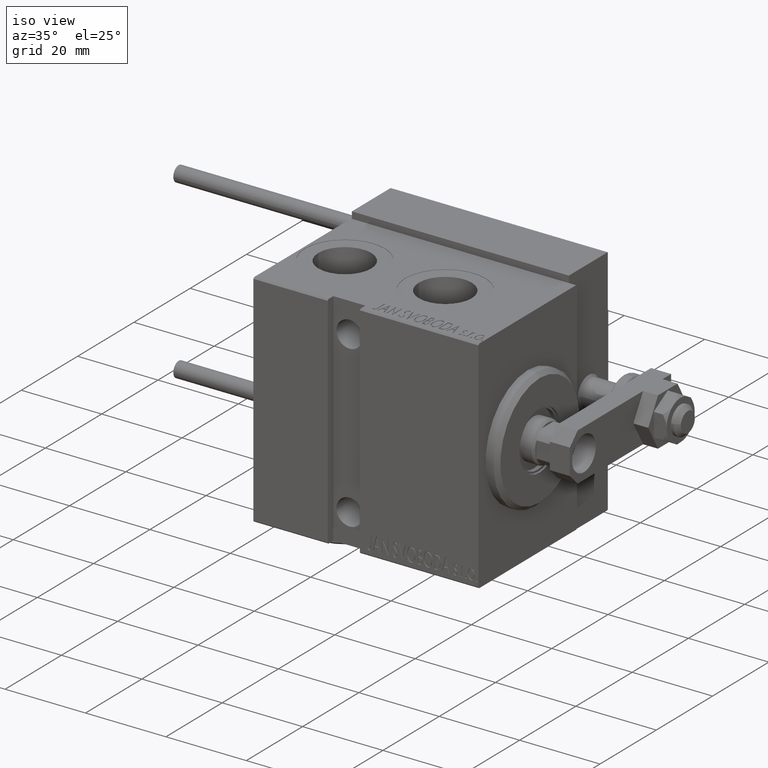
[diagram: clean part render]
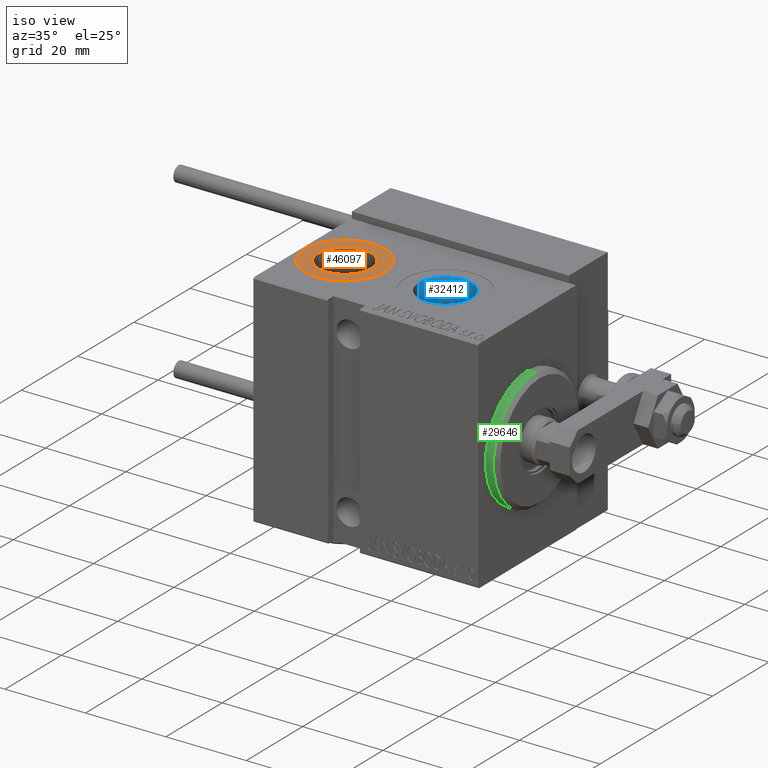
[diagram: same view with three faces highlighted in distinct colors, each labeled with its STEP entity id]
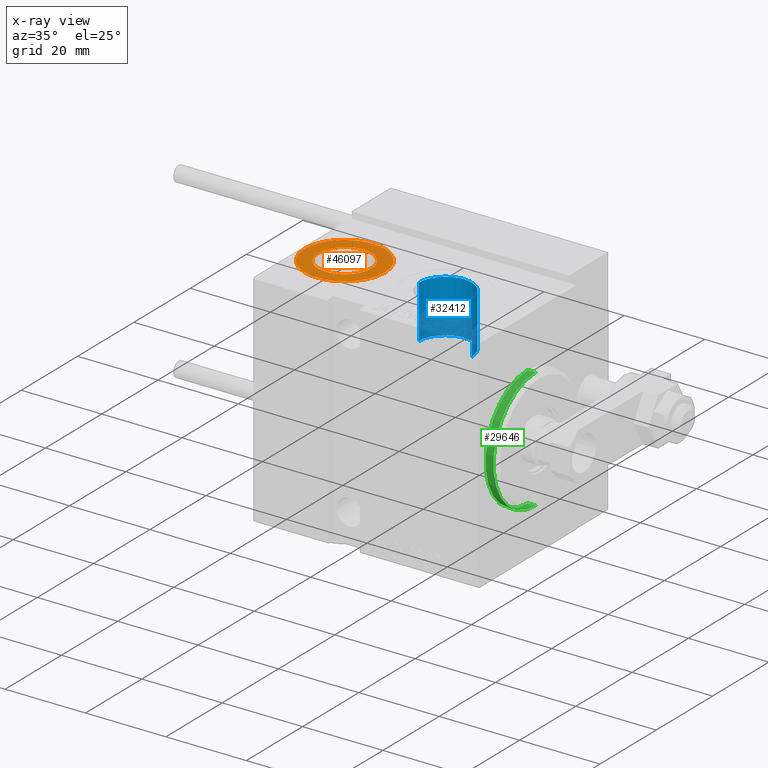
[diagram: x-ray of the same camera — body ghosted, the three highlighted faces saturated]
A machine part, iso view with three faces highlighted in distinct colors.
The next image is the same camera in x-ray (body ghosted, the three faces saturated) — at least one of them is partly hidden behind the body in this view.
Their STEP definitions:

[orange] entity #46097 — the highlighted planar face has unit normal (0, 0, 1).
#1372 = CARTESIAN_POINT ( 'NONE',  ( 45.50000000000000000, -5.451988067355679101E-15, 27.39999999999999858 ) ) ;
#1805 = CARTESIAN_POINT ( 'NONE',  ( 55.50000000000000000, -5.451988067355679101E-15, 27.39999999999999858 ) ) ;
#1838 = CIRCLE ( 'NONE', #29105, 6.580000000000002736 ) ;
#2170 = DIRECTION ( 'NONE',  ( 1.000000000000000000, 0.000000000000000000, 0.000000000000000000 ) ) ;
#3821 = DIRECTION ( 'NONE',  ( 1.000000000000000000, 0.000000000000000000, 0.000000000000000000 ) ) ;
#4041 = EDGE_CURVE ( 'NONE', #42548, #43212, #6548, .T. ) ;
#6548 = CIRCLE ( 'NONE', #12354, 10.00000000000000178 ) ;
#8633 = CARTESIAN_POINT ( 'NONE',  ( 52.07999999999999829, 0.000000000000000000, 27.39999999999999858 ) ) ;
#8671 = CARTESIAN_POINT ( 'NONE',  ( 45.50000000000000000, -5.451988067355679101E-15, 27.39999999999999858 ) ) ;
#9752 = CARTESIAN_POINT ( 'NONE',  ( 35.50000000000000000, -4.227341268208326831E-15, 27.39999999999999858 ) ) ;
#10961 = CARTESIAN_POINT ( 'NONE',  ( 45.50000000000000000, 0.000000000000000000, 27.39999999999999858 ) ) ;
#12291 = CIRCLE ( 'NONE', #27129, 6.580000000000002736 ) ;
#12354 = AXIS2_PLACEMENT_3D ( 'NONE', #1372, #21038, #32448 ) ;
#13621 = EDGE_LOOP ( 'NONE', ( #36493, #34927 ) ) ;
#16667 = DIRECTION ( 'NONE',  ( 0.000000000000000000, 0.000000000000000000, 1.000000000000000000 ) ) ;
#16915 = FACE_BOUND ( 'NONE', #13621, .T. ) ;
#17669 = DIRECTION ( 'NONE',  ( 1.000000000000000000, 0.000000000000000000, -0.000000000000000000 ) ) ;
#17727 = CARTESIAN_POINT ( 'NONE',  ( 45.50000000000000000, 0.000000000000000000, 27.39999999999999858 ) ) ;
#20474 = CARTESIAN_POINT ( 'NONE',  ( 38.91999999999999460, 8.058175938389585489E-16, 27.39999999999999858 ) ) ;
#21038 = DIRECTION ( 'NONE',  ( 0.000000000000000000, 0.000000000000000000, 1.000000000000000000 ) ) ;
#22958 = CARTESIAN_POINT ( 'NONE',  ( 45.50000000000000000, -5.451988067355679101E-15, 27.39999999999999858 ) ) ;
#25439 = FACE_OUTER_BOUND ( 'NONE', #40872, .T. ) ;
#26430 = EDGE_CURVE ( 'NONE', #37328, #41837, #1838, .T. ) ;
#26726 = CIRCLE ( 'NONE', #36654, 10.00000000000000178 ) ;
#27129 = AXIS2_PLACEMENT_3D ( 'NONE', #17727, #33515, #49780 ) ;
#27688 = ORIENTED_EDGE ( 'NONE', *, *, #29084, .T. ) ;
#27889 = DIRECTION ( 'NONE',  ( 0.000000000000000000, 0.000000000000000000, 1.000000000000000000 ) ) ;
#29084 = EDGE_CURVE ( 'NONE', #43212, #42548, #26726, .T. ) ;
#29105 = AXIS2_PLACEMENT_3D ( 'NONE', #10961, #49748, #2170 ) ;
#32448 = DIRECTION ( 'NONE',  ( 1.000000000000000000, 0.000000000000000000, 0.000000000000000000 ) ) ;
#33515 = DIRECTION ( 'NONE',  ( 0.000000000000000000, 0.000000000000000000, 1.000000000000000000 ) ) ;
#34927 = ORIENTED_EDGE ( 'NONE', *, *, #26430, .F. ) ;
#36493 = ORIENTED_EDGE ( 'NONE', *, *, #47142, .F. ) ;
#36654 = AXIS2_PLACEMENT_3D ( 'NONE', #22958, #27889, #3821 ) ;
#37140 = AXIS2_PLACEMENT_3D ( 'NONE', #8671, #16667, #17669 ) ;
#37328 = VERTEX_POINT ( 'NONE', #20474 ) ;
#40872 = EDGE_LOOP ( 'NONE', ( #27688, #42873 ) ) ;
#41837 = VERTEX_POINT ( 'NONE', #8633 ) ;
#42548 = VERTEX_POINT ( 'NONE', #9752 ) ;
#42873 = ORIENTED_EDGE ( 'NONE', *, *, #4041, .T. ) ;
#43212 = VERTEX_POINT ( 'NONE', #1805 ) ;
#44083 = PLANE ( 'NONE',  #37140 ) ;
#46097 = ADVANCED_FACE ( 'NONE', ( #16915, #25439 ), #44083, .T. ) ;
#47142 = EDGE_CURVE ( 'NONE', #41837, #37328, #12291, .T. ) ;
#49748 = DIRECTION ( 'NONE',  ( 0.000000000000000000, 0.000000000000000000, 1.000000000000000000 ) ) ;
#49780 = DIRECTION ( 'NONE',  ( 1.000000000000000000, 0.000000000000000000, 0.000000000000000000 ) ) ;

[blue] entity #32412 — the highlighted cylindrical surface (edge-blend (fillet) strip) has radius 6.58 mm, axis along (0, 0, 1).
#497 = CARTESIAN_POINT ( 'NONE',  ( 27.07999999999999829, 0.000000000000000000, 27.39999999999999858 ) ) ;
#1167 = LINE ( 'NONE', #48752, #2971 ) ;
#1913 = ORIENTED_EDGE ( 'NONE', *, *, #35095, .T. ) ;
#2971 = VECTOR ( 'NONE', #13312, 1000.000000000000000 ) ;
#2980 = DIRECTION ( 'NONE',  ( 0.000000000000000000, 0.000000000000000000, 1.000000000000000000 ) ) ;
#7878 = AXIS2_PLACEMENT_3D ( 'NONE', #17538, #49083, #13652 ) ;
#8068 = CARTESIAN_POINT ( 'NONE',  ( 13.92000000000000171, 8.058175938389579572E-16, 27.39999999999999858 ) ) ;
#13312 = DIRECTION ( 'NONE',  ( -0.000000000000000000, -0.000000000000000000, 1.000000000000000000 ) ) ;
#13612 = AXIS2_PLACEMENT_3D ( 'NONE', #30406, #2980, #22379 ) ;
#13652 = DIRECTION ( 'NONE',  ( 1.000000000000000000, 0.000000000000000000, 0.000000000000000000 ) ) ;
#14560 = EDGE_CURVE ( 'NONE', #22321, #36256, #37080, .T. ) ;
#15373 = DIRECTION ( 'NONE',  ( -0.000000000000000000, -0.000000000000000000, 1.000000000000000000 ) ) ;
#17538 = CARTESIAN_POINT ( 'NONE',  ( 20.50000000000000000, 0.000000000000000000, 14.23999999999999666 ) ) ;
#18103 = VECTOR ( 'NONE', #15373, 1000.000000000000000 ) ;
#18232 = ORIENTED_EDGE ( 'NONE', *, *, #45231, .F. ) ;
#19484 = ORIENTED_EDGE ( 'NONE', *, *, #32556, .T. ) ;
#22321 = VERTEX_POINT ( 'NONE', #33144 ) ;
#22379 = DIRECTION ( 'NONE',  ( 1.000000000000000000, 0.000000000000000000, 0.000000000000000000 ) ) ;
#23856 = DIRECTION ( 'NONE',  ( 0.000000000000000000, 0.000000000000000000, 1.000000000000000000 ) ) ;
#25146 = EDGE_LOOP ( 'NONE', ( #29457, #1913, #19484, #18232 ) ) ;
#27994 = CARTESIAN_POINT ( 'NONE',  ( 20.50000000000000000, 0.000000000000000000, 14.23999999999999666 ) ) ;
#29316 = CIRCLE ( 'NONE', #13612, 6.579999999999999183 ) ;
#29457 = ORIENTED_EDGE ( 'NONE', *, *, #14560, .F. ) ;
#30406 = CARTESIAN_POINT ( 'NONE',  ( 20.50000000000000000, 0.000000000000000000, 27.39999999999999858 ) ) ;
#32240 = VERTEX_POINT ( 'NONE', #497 ) ;
#32388 = DIRECTION ( 'NONE',  ( 1.000000000000000000, 0.000000000000000000, 0.000000000000000000 ) ) ;
#32412 = ADVANCED_FACE ( 'NONE', ( #37199 ), #33566, .F. ) ;
#32556 = EDGE_CURVE ( 'NONE', #38297, #32240, #29316, .T. ) ;
#33144 = CARTESIAN_POINT ( 'NONE',  ( 13.92000000000000171, 8.058175938389579572E-16, 14.23999999999999666 ) ) ;
#33566 = CYLINDRICAL_SURFACE ( 'NONE', #7878, 6.579999999999999183 ) ;
#35095 = EDGE_CURVE ( 'NONE', #22321, #38297, #1167, .T. ) ;
#36071 = CARTESIAN_POINT ( 'NONE',  ( 27.07999999999999829, 0.000000000000000000, 14.23999999999999666 ) ) ;
#36256 = VERTEX_POINT ( 'NONE', #36071 ) ;
#37080 = CIRCLE ( 'NONE', #46971, 6.579999999999999183 ) ;
#37199 = FACE_OUTER_BOUND ( 'NONE', #25146, .T. ) ;
#38297 = VERTEX_POINT ( 'NONE', #8068 ) ;
#45231 = EDGE_CURVE ( 'NONE', #36256, #32240, #50799, .T. ) ;
#46923 = CARTESIAN_POINT ( 'NONE',  ( 27.07999999999999829, 0.000000000000000000, 14.23999999999999666 ) ) ;
#46971 = AXIS2_PLACEMENT_3D ( 'NONE', #27994, #23856, #32388 ) ;
#48752 = CARTESIAN_POINT ( 'NONE',  ( 13.92000000000000171, 8.058175938389580558E-16, 14.23999999999999666 ) ) ;
#49083 = DIRECTION ( 'NONE',  ( -0.000000000000000000, -0.000000000000000000, 1.000000000000000000 ) ) ;
#50799 = LINE ( 'NONE', #46923, #18103 ) ;

[green] entity #29646 — the highlighted cylindrical surface (partial cylindrical patch) has radius 15 mm, axis along (-1, -0, -0).
#449 = VERTEX_POINT ( 'NONE', #17576 ) ;
#1443 = DIRECTION ( 'NONE',  ( -1.000000000000000000, -0.000000000000000000, -0.000000000000000000 ) ) ;
#2981 = VERTEX_POINT ( 'NONE', #5534 ) ;
#3940 = VERTEX_POINT ( 'NONE', #16901 ) ;
#3989 = DIRECTION ( 'NONE',  ( -1.000000000000000000, 0.000000000000000000, 0.000000000000000000 ) ) ;
#5207 = DIRECTION ( 'NONE',  ( -1.000000000000000000, -0.000000000000000000, -0.000000000000000000 ) ) ;
#5534 = CARTESIAN_POINT ( 'NONE',  ( 0.000000000000000000, 1.836970198721029589E-15, -15.00000000000000000 ) ) ;
#6224 = CIRCLE ( 'NONE', #35147, 15.00000000000000000 ) ;
#7721 = EDGE_CURVE ( 'NONE', #449, #3940, #9587, .T. ) ;
#8245 = EDGE_CURVE ( 'NONE', #21195, #2981, #16968, .T. ) ;
#9587 = LINE ( 'NONE', #29493, #42240 ) ;
#10957 = AXIS2_PLACEMENT_3D ( 'NONE', #19382, #38784, #50406 ) ;
#11033 = AXIS2_PLACEMENT_3D ( 'NONE', #20270, #20014, #32686 ) ;
#14621 = CARTESIAN_POINT ( 'NONE',  ( 1.999999999999988676, 1.836970198721029589E-15, -15.00000000000000000 ) ) ;
#14952 = VECTOR ( 'NONE', #1443, 1000.000000000000000 ) ;
#16901 = CARTESIAN_POINT ( 'NONE',  ( 0.000000000000000000, 0.000000000000000000, 15.00000000000000000 ) ) ;
#16968 = LINE ( 'NONE', #48525, #14952 ) ;
#17576 = CARTESIAN_POINT ( 'NONE',  ( 1.999999999999988676, 0.000000000000000000, 15.00000000000000000 ) ) ;
#18511 = ORIENTED_EDGE ( 'NONE', *, *, #27040, .T. ) ;
#19382 = CARTESIAN_POINT ( 'NONE',  ( 0.000000000000000000, 0.000000000000000000, 0.000000000000000000 ) ) ;
#20014 = DIRECTION ( 'NONE',  ( -1.000000000000000000, -0.000000000000000000, -0.000000000000000000 ) ) ;
#20270 = CARTESIAN_POINT ( 'NONE',  ( 3.000000000000000000, 0.000000000000000000, 0.000000000000000000 ) ) ;
#20516 = FACE_OUTER_BOUND ( 'NONE', #26778, .T. ) ;
#21195 = VERTEX_POINT ( 'NONE', #14621 ) ;
#26778 = EDGE_LOOP ( 'NONE', ( #33768, #34557, #38433, #18511 ) ) ;
#27040 = EDGE_CURVE ( 'NONE', #3940, #2981, #47305, .T. ) ;
#29493 = CARTESIAN_POINT ( 'NONE',  ( 3.000000000000000000, 0.000000000000000000, 15.00000000000000000 ) ) ;
#29646 = ADVANCED_FACE ( 'NONE', ( #20516 ), #39927, .T. ) ;
#32686 = DIRECTION ( 'NONE',  ( 0.000000000000000000, 0.000000000000000000, 1.000000000000000000 ) ) ;
#33768 = ORIENTED_EDGE ( 'NONE', *, *, #8245, .F. ) ;
#34557 = ORIENTED_EDGE ( 'NONE', *, *, #36295, .T. ) ;
#35147 = AXIS2_PLACEMENT_3D ( 'NONE', #39424, #3989, #47442 ) ;
#36295 = EDGE_CURVE ( 'NONE', #21195, #449, #6224, .T. ) ;
#38433 = ORIENTED_EDGE ( 'NONE', *, *, #7721, .T. ) ;
#38784 = DIRECTION ( 'NONE',  ( 1.000000000000000000, -0.000000000000000000, 0.000000000000000000 ) ) ;
#39424 = CARTESIAN_POINT ( 'NONE',  ( 1.999999999999988676, 0.000000000000000000, 0.000000000000000000 ) ) ;
#39927 = CYLINDRICAL_SURFACE ( 'NONE', #11033, 15.00000000000000000 ) ;
#42240 = VECTOR ( 'NONE', #5207, 1000.000000000000000 ) ;
#47305 = CIRCLE ( 'NONE', #10957, 15.00000000000000000 ) ;
#47442 = DIRECTION ( 'NONE',  ( 0.000000000000000000, 0.000000000000000000, -1.000000000000000000 ) ) ;
#48525 = CARTESIAN_POINT ( 'NONE',  ( 3.000000000000000000, 1.836970198721029589E-15, -15.00000000000000000 ) ) ;
#50406 = DIRECTION ( 'NONE',  ( 0.000000000000000000, 0.000000000000000000, -1.000000000000000000 ) ) ;